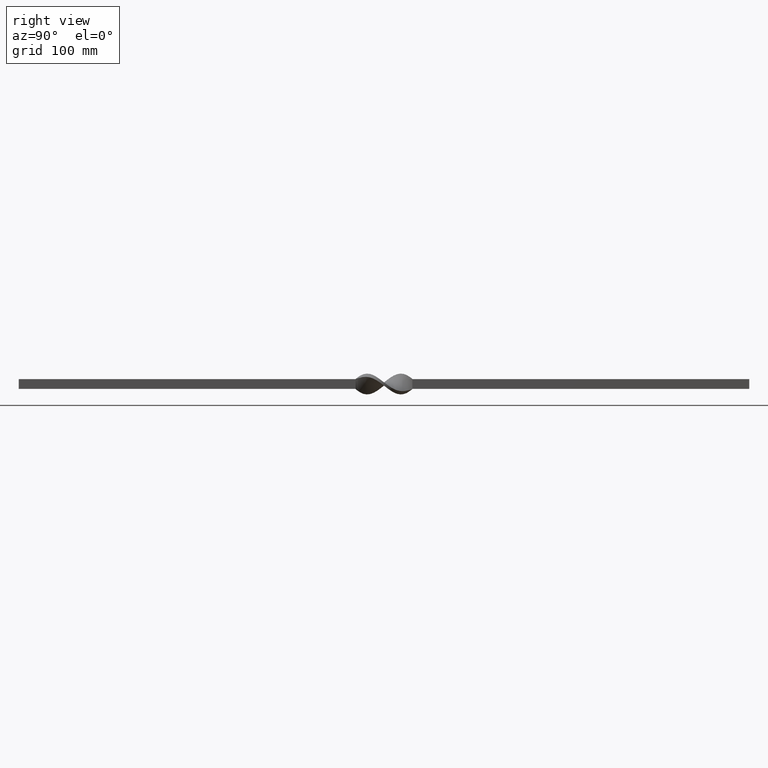
[diagram: clean part render]
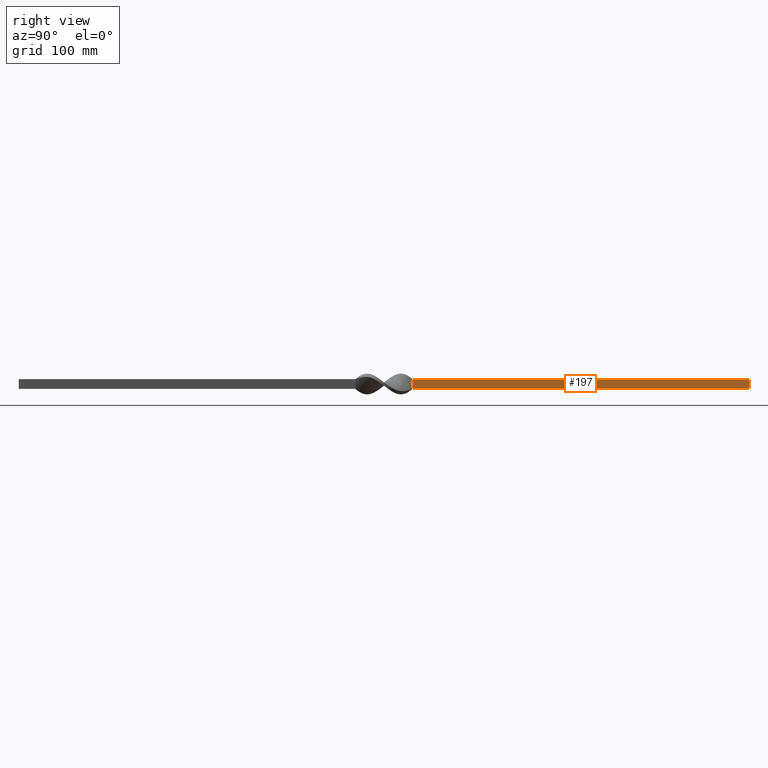
[diagram: same view with one face highlighted and labeled with its STEP entity id]
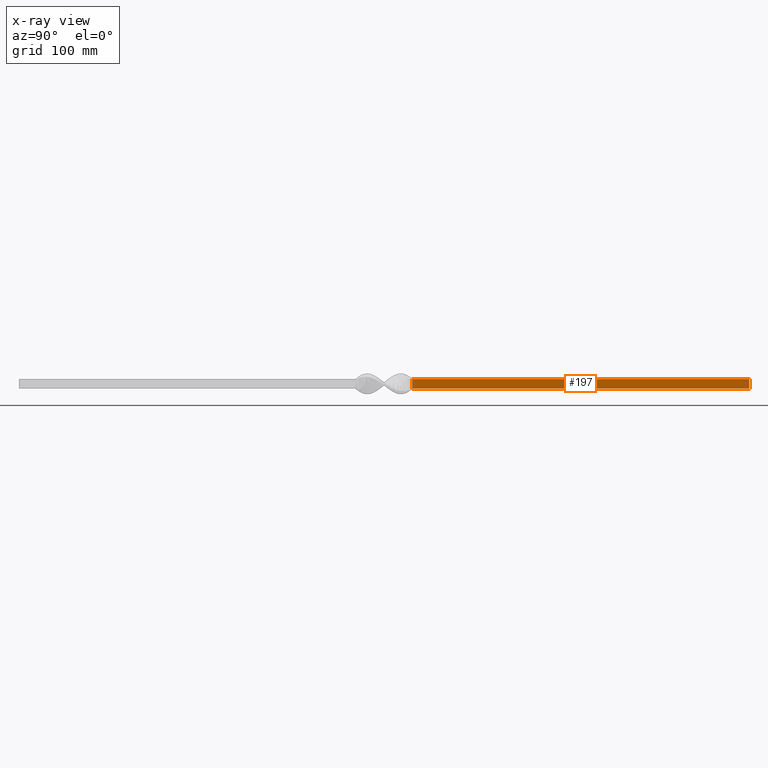
[diagram: x-ray of the same camera — body ghosted, the highlighted face saturated]
A machine part, right view. The second image highlights one B-rep face of the part: STEP entity #197.
The next image is the same camera in x-ray: the body ghosted, the highlighted face saturated — about 0% of this face is hidden behind the body in this view.
In plain terms, the highlighted planar face has unit normal (-1, -0, 0).
Its self-contained STEP definition (entity closure, byte-faithful):
#85 = VECTOR ( 'NONE', #6014, 1000.000000000000227 ) ;
#197 = ADVANCED_FACE ( 'NONE', ( #4854 ), #10455, .F. ) ;
#952 = EDGE_LOOP ( 'NONE', ( #5897, #5223, #9376, #8384 ) ) ;
#1045 = B_SPLINE_CURVE_WITH_KNOTS ( 'NONE', 3,
 ( #5743, #7607, #5777, #8484 ),
 .UNSPECIFIED., .F., .F.,
 ( 4, 4 ),
 ( -0.8819705627484772936, -0.4669705627484773136 ),
 .UNSPECIFIED. ) ;
#1220 = CARTESIAN_POINT ( 'NONE',  ( 6.000014289276637491, 450.0000000000000000, 5.999985710689304419 ) ) ;
#1741 = DIRECTION ( 'NONE',  ( -0.9999999999971641573, -2.090019822545568571E-17, 2.381548944019087115E-06 ) ) ;
#2389 = LINE ( 'NONE', #10360, #85 ) ;
#3343 = CARTESIAN_POINT ( 'NONE',  ( 5.999985710689309748, 450.0000000000000000, -6.000014289276665913 ) ) ;
#3668 = VERTEX_POINT ( 'NONE', #4621 ) ;
#3844 = CARTESIAN_POINT ( 'NONE',  ( 6.000014286162812738, 35.00000000000000711, 5.999985710689326623 ) ) ;
#4621 = CARTESIAN_POINT ( 'NONE',  ( 5.999985710689327512, 35.00000000000000000, -6.000014285811238857 ) ) ;
#4633 = VERTEX_POINT ( 'NONE', #3343 ) ;
#4812 = CARTESIAN_POINT ( 'NONE',  ( 6.000014289276637491, 450.0000000000000000, 5.999985710689304419 ) ) ;
#4854 = FACE_OUTER_BOUND ( 'NONE', #952, .T. ) ;
#4953 = B_SPLINE_CURVE_WITH_KNOTS ( 'NONE', 3,
 ( #5869, #11272, #5109, #9459 ),
 .UNSPECIFIED., .F., .F.,
 ( 4, 4 ),
 ( -0.006000000000000000992, 0.006000000000000000992 ),
 .UNSPECIFIED. ) ;
#5109 = CARTESIAN_POINT ( 'NONE',  ( 5.999995236885083294, 449.9999999999998863, -2.000014289288006619 ) ) ;
#5223 = ORIENTED_EDGE ( 'NONE', *, *, #5702, .T. ) ;
#5239 = DIRECTION ( 'NONE',  ( 2.381548944019086691E-06, 0.000000000000000000, 0.9999999999971640463 ) ) ;
#5665 = CARTESIAN_POINT ( 'NONE',  ( 6.000014289276640156, 311.6666666666668561, 5.999985710689312413 ) ) ;
#5677 = B_SPLINE_CURVE_WITH_KNOTS ( 'NONE', 3,
 ( #4812, #5665, #9148, #3844 ),
 .UNSPECIFIED., .F., .F.,
 ( 4, 4 ),
 ( -0.8819705627484772936, -0.4669705627484773136 ),
 .UNSPECIFIED. ) ;
#5702 = EDGE_CURVE ( 'NONE', #3668, #4633, #1045, .T. ) ;
#5743 = CARTESIAN_POINT ( 'NONE',  ( 5.999985710689327512, 35.00000000000000000, -6.000014285811238857 ) ) ;
#5777 = CARTESIAN_POINT ( 'NONE',  ( 5.999985710689307083, 311.6666666666668561, -6.000014289276655255 ) ) ;
#5869 = CARTESIAN_POINT ( 'NONE',  ( 6.000014289276637491, 450.0000000000000000, 5.999985710689304419 ) ) ;
#5897 = ORIENTED_EDGE ( 'NONE', *, *, #8079, .T. ) ;
#6014 = DIRECTION ( 'NONE',  ( -2.381548944019086691E-06, -0.000000000000000000, -0.9999999999971640463 ) ) ;
#7607 = CARTESIAN_POINT ( 'NONE',  ( 5.999985710689324847, 173.3333333333332291, -6.000014289276664137 ) ) ;
#7985 = EDGE_CURVE ( 'NONE', #10605, #4633, #4953, .T. ) ;
#8079 = EDGE_CURVE ( 'NONE', #10634, #3668, #2389, .T. ) ;
#8222 = CARTESIAN_POINT ( 'NONE',  ( 6.000014286162812738, 35.00000000000000711, 5.999985710689326623 ) ) ;
#8384 = ORIENTED_EDGE ( 'NONE', *, *, #9079, .T. ) ;
#8484 = CARTESIAN_POINT ( 'NONE',  ( 5.999985710689309748, 450.0000000000000000, -6.000014289276665913 ) ) ;
#9079 = EDGE_CURVE ( 'NONE', #10605, #10634, #5677, .T. ) ;
#9148 = CARTESIAN_POINT ( 'NONE',  ( 6.000014289276649926, 173.3333333333332291, 5.999985710689316853 ) ) ;
#9376 = ORIENTED_EDGE ( 'NONE', *, *, #7985, .F. ) ;
#9459 = CARTESIAN_POINT ( 'NONE',  ( 5.999985710689309748, 450.0000000000000000, -6.000014289276665913 ) ) ;
#9655 = CARTESIAN_POINT ( 'NONE',  ( 5.999985710689319518, 35.00000000000000000, -6.000014289276650814 ) ) ;
#10110 = AXIS2_PLACEMENT_3D ( 'NONE', #9655, #1741, #5239 ) ;
#10360 = CARTESIAN_POINT ( 'NONE',  ( 5.999985710689319518, 35.00000000000000000, -6.000014289276650814 ) ) ;
#10455 = PLANE ( 'NONE',  #10110 ) ;
#10605 = VERTEX_POINT ( 'NONE', #1220 ) ;
#10634 = VERTEX_POINT ( 'NONE', #8222 ) ;
#11272 = CARTESIAN_POINT ( 'NONE',  ( 6.000004763080863945, 450.0000000000003979, 1.999985710700647346 ) ) ;